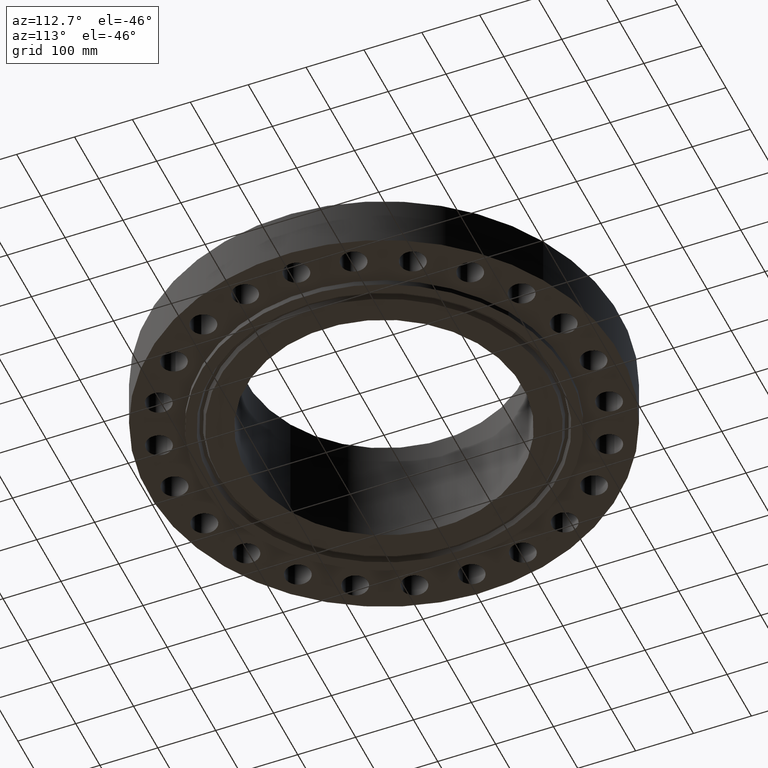
[diagram: clean part render]
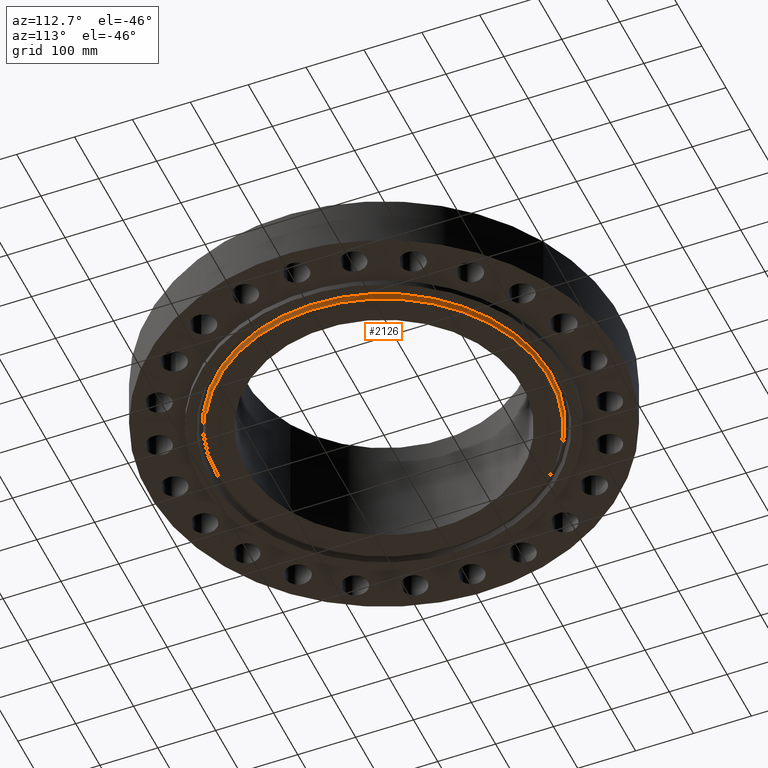
[diagram: same view with one face highlighted and labeled with its STEP entity id]
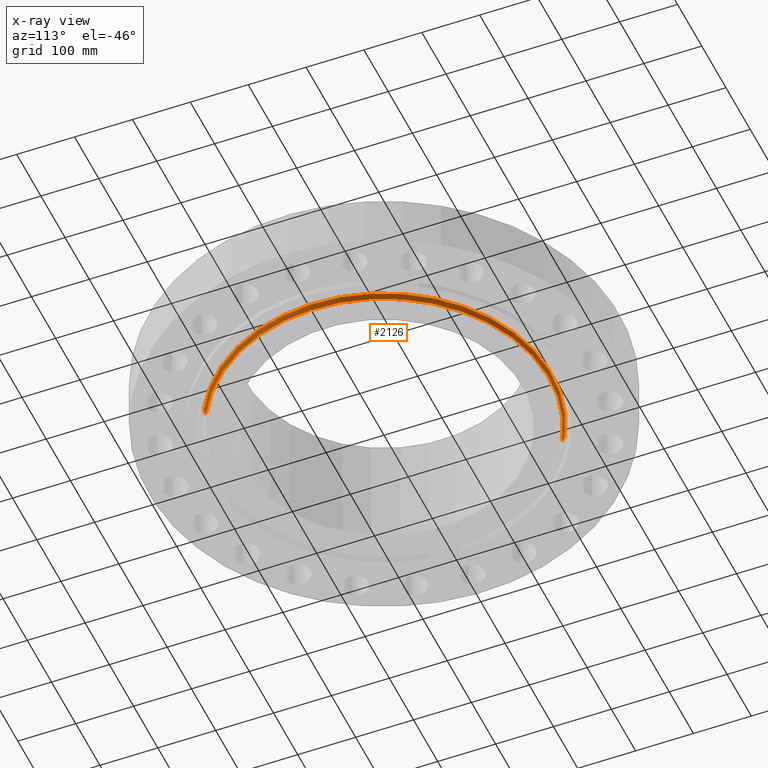
[diagram: x-ray of the same camera — body ghosted, the highlighted face saturated]
A machine part, auxiliary view. The second image highlights one B-rep face of the part: STEP entity #2126.
The next image is the same camera in x-ray: the body ghosted, the highlighted face saturated — about 0% of this face is hidden behind the body in this view.
In plain terms, the highlighted conical surface has half-angle 23 deg.
Its self-contained STEP definition (entity closure, byte-faithful):
#1932=AXIS2_PLACEMENT_3D('Circle Axis2P3D',#1930,#1931,$) ;
#2076=AXIS2_PLACEMENT_3D('Circle Axis2P3D',#2074,#2075,$) ;
#2108=AXIS2_PLACEMENT_3D('Cone Axis2P3D',#2105,#2106,#2107) ;
#1930=CARTESIAN_POINT('Axis2P3D Location',(0.,0.,-0.375000000001)) ;
#1934=CARTESIAN_POINT('Vertex',(-5.38610621347,9.8592012916,-0.375000000001)) ;
#1936=CARTESIAN_POINT('Vertex',(5.38610621347,-9.8592012916,-0.375000000001)) ;
#2071=CARTESIAN_POINT('Vertex',(5.45460895105,-9.98459471164,-0.0383839389053)) ;
#2074=CARTESIAN_POINT('Axis2P3D Location',(0.,0.,-0.0383839389053)) ;
#2078=CARTESIAN_POINT('Vertex',(-5.45460895105,9.98459471164,-0.0383839389053)) ;
#2105=CARTESIAN_POINT('Axis2P3D Location',(0.,0.,-0.435000000002)) ;
#2110=CARTESIAN_POINT('Line Origine',(-5.42035758226,9.92189800162,-0.206691969453)) ;
#2115=CARTESIAN_POINT('Line Origine',(5.42035758226,-9.92189800162,-0.206691969453)) ;
#1931=DIRECTION('Axis2P3D Direction',(0.,0.,-0.0393700787402)) ;
#2075=DIRECTION('Axis2P3D Direction',(0.,0.,0.0393700787402)) ;
#2106=DIRECTION('Axis2P3D Direction',(0.,0.,0.0393700787402)) ;
#2107=DIRECTION('Axis2P3D XDirection',(-0.0188750212049,0.0345504945626,0.)) ;
#2111=DIRECTION('Vector Direction',(-0.00737505833565,0.0134999537303,0.0362403485611)) ;
#2116=DIRECTION('Vector Direction',(0.00737505833565,-0.0134999537303,0.0362403485611)) ;
#2112=VECTOR('Line Direction',#2111,0.0393700787402) ;
#2117=VECTOR('Line Direction',#2116,0.0393700787402) ;
#2121=ORIENTED_EDGE('',*,*,#2114,.F.) ;
#2122=ORIENTED_EDGE('',*,*,#2080,.F.) ;
#2123=ORIENTED_EDGE('',*,*,#2119,.T.) ;
#2124=ORIENTED_EDGE('',*,*,#1938,.F.) ;
#2126=ADVANCED_FACE('PartBody',(#2125),#2109,.T.) ;
#1933=CIRCLE('generated circle',#1932,11.2345) ;
#2077=CIRCLE('generated circle',#2076,11.3773850407) ;
#2109=CONICAL_SURFACE('Cone',#2108,11.2090315111,0.401425727959) ;
#1938=EDGE_CURVE('',#1935,#1937,#1933,.T.) ;
#2080=EDGE_CURVE('',#2072,#2079,#2077,.T.) ;
#2114=EDGE_CURVE('',#2079,#1935,#2113,.F.) ;
#2119=EDGE_CURVE('',#2072,#1937,#2118,.F.) ;
#2120=EDGE_LOOP('',(#2121,#2122,#2123,#2124)) ;
#2125=FACE_OUTER_BOUND('',#2120,.T.) ;
#2113=LINE('Line',#2110,#2112) ;
#2118=LINE('Line',#2115,#2117) ;
#1935=VERTEX_POINT('',#1934) ;
#1937=VERTEX_POINT('',#1936) ;
#2072=VERTEX_POINT('',#2071) ;
#2079=VERTEX_POINT('',#2078) ;